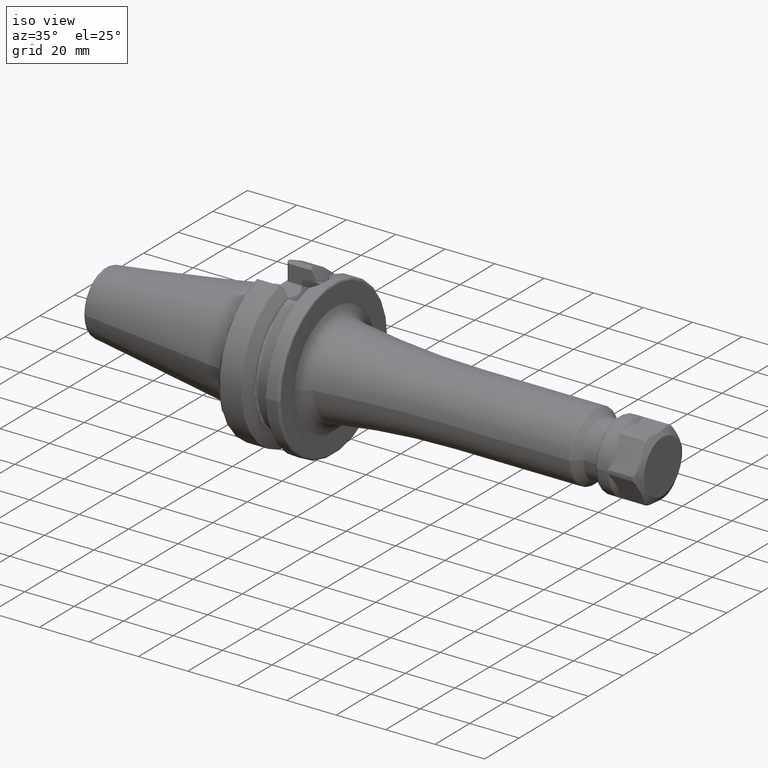
[diagram: clean part render]
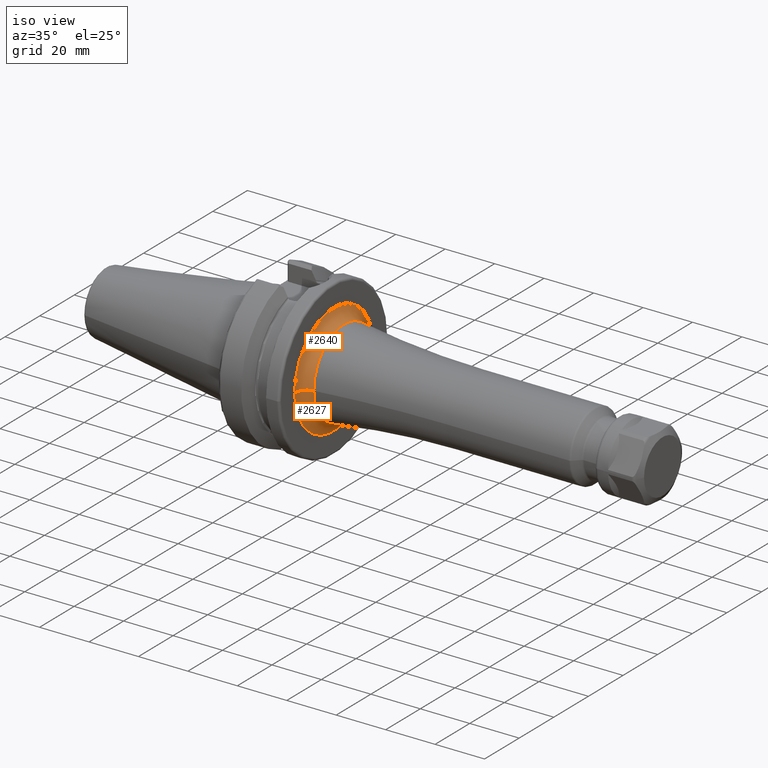
[diagram: same view with one multi-face feature highlighted, each face labeled with its STEP entity id]
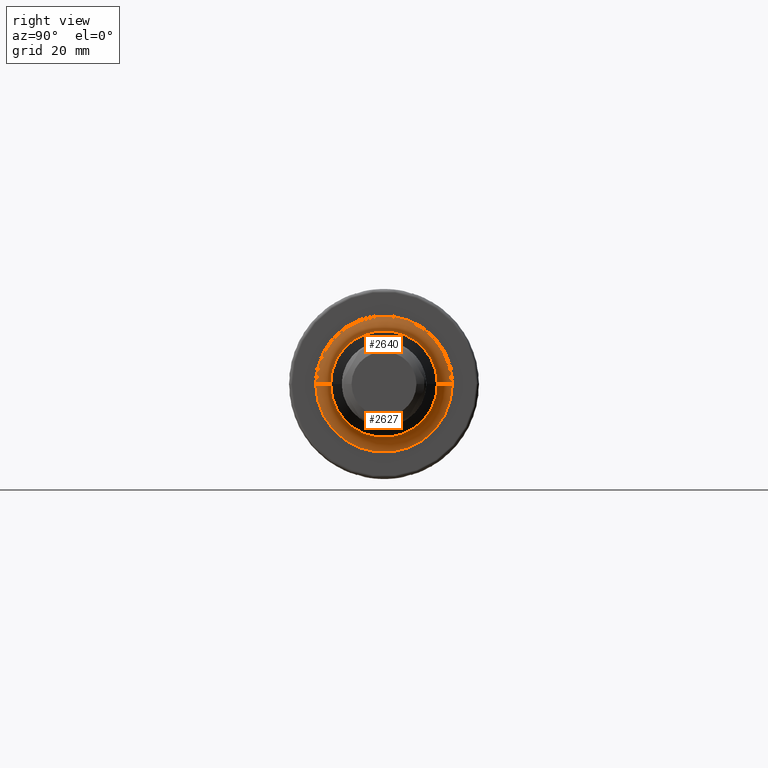
[diagram: same view with one multi-face feature highlighted, each face labeled with its STEP entity id]
A machine part, iso view. The highlighted faces form ONE feature: a constant-radius fillet chain: 2 tangent blend faces with common blend radius 5 mm. The faces share edges in the B-rep.
A second angle (right view) of the same feature is appended — it is thin or edge-on in the first view.
Their STEP definitions:
[1] entity #2640 (Torus):
#841=CARTESIAN_POINT('',(2.7E1,0.E0,0.E0));
#842=DIRECTION('',(1.E0,0.E0,0.E0));
#843=DIRECTION('',(0.E0,1.E0,0.E0));
#844=AXIS2_PLACEMENT_3D('',#841,#842,#843);
#846=CARTESIAN_POINT('',(3.2E1,-2.264241622603E1,1.492556078730E-12));
#847=DIRECTION('',(0.E0,-6.591775736364E-14,-1.E0));
#848=DIRECTION('',(-1.E0,2.913225216616E-14,0.E0));
#849=AXIS2_PLACEMENT_3D('',#846,#847,#848);
#851=CARTESIAN_POINT('',(3.2E1,2.264241622603E1,-1.505434665816E-12));
#852=DIRECTION('',(0.E0,6.648674666376E-14,1.E0));
#853=DIRECTION('',(-1.E0,-2.771116669464E-14,0.E0));
#854=AXIS2_PLACEMENT_3D('',#851,#852,#853);
#856=CARTESIAN_POINT('',(3.127536231884E1,0.E0,0.E0));
#857=DIRECTION('',(1.E0,0.E0,0.E0));
#858=DIRECTION('',(0.E0,1.E0,0.E0));
#859=AXIS2_PLACEMENT_3D('',#856,#857,#858);
#1505=CARTESIAN_POINT('',(2.7E1,-2.264241622603E1,-1.560102413960E-14));
#1506=CARTESIAN_POINT('',(2.7E1,2.264241622603E1,1.282812788399E-14));
#1507=VERTEX_POINT('',#1505);
#1508=VERTEX_POINT('',#1506);
#1509=CARTESIAN_POINT('',(3.127536231884E1,-1.769520486699E1,0.E0));
#1510=CARTESIAN_POINT('',(3.127536231884E1,1.769520486699E1,0.E0));
#1511=VERTEX_POINT('',#1509);
#1512=VERTEX_POINT('',#1510);
#2628=CARTESIAN_POINT('',(3.2E1,0.E0,0.E0));
#2629=DIRECTION('',(1.E0,0.E0,0.E0));
#2630=DIRECTION('',(0.E0,9.999480735601E-1,-1.019069102336E-2));
#2631=AXIS2_PLACEMENT_3D('',#2628,#2629,#2630);
#2632=TOROIDAL_SURFACE('',#2631,2.264241622603E1,5.E0);
#2633=ORIENTED_EDGE('',*,*,#2608,.F.);
#2634=ORIENTED_EDGE('',*,*,#2623,.T.);
#2636=ORIENTED_EDGE('',*,*,#2635,.T.);
#2637=ORIENTED_EDGE('',*,*,#2619,.F.);
#2638=EDGE_LOOP('',(#2633,#2634,#2636,#2637));
#2639=FACE_OUTER_BOUND('',#2638,.F.);
#2640=ADVANCED_FACE('',(#2639),#2632,.F.);
#845=CIRCLE('',#844,2.264241622603E1);
#850=CIRCLE('',#849,5.E0);
#855=CIRCLE('',#854,5.E0);
#860=CIRCLE('',#859,1.769520486699E1);
#2608=EDGE_CURVE('',#1508,#1507,#845,.T.);
#2619=EDGE_CURVE('',#1507,#1511,#850,.T.);
#2623=EDGE_CURVE('',#1508,#1512,#855,.T.);
#2635=EDGE_CURVE('',#1512,#1511,#860,.T.);
[2] entity #2627 (Torus):
#836=CARTESIAN_POINT('',(2.7E1,0.E0,0.E0));
#837=DIRECTION('',(1.E0,0.E0,0.E0));
#838=DIRECTION('',(0.E0,-1.E0,0.E0));
#839=AXIS2_PLACEMENT_3D('',#836,#837,#838);
#846=CARTESIAN_POINT('',(3.2E1,-2.264241622603E1,1.492556078730E-12));
#847=DIRECTION('',(0.E0,-6.591775736364E-14,-1.E0));
#848=DIRECTION('',(-1.E0,2.913225216616E-14,0.E0));
#849=AXIS2_PLACEMENT_3D('',#846,#847,#848);
#851=CARTESIAN_POINT('',(3.2E1,2.264241622603E1,-1.505434665816E-12));
#852=DIRECTION('',(0.E0,6.648674666376E-14,1.E0));
#853=DIRECTION('',(-1.E0,-2.771116669464E-14,0.E0));
#854=AXIS2_PLACEMENT_3D('',#851,#852,#853);
#861=CARTESIAN_POINT('',(3.127536231884E1,0.E0,0.E0));
#862=DIRECTION('',(1.E0,0.E0,0.E0));
#863=DIRECTION('',(0.E0,-1.E0,0.E0));
#864=AXIS2_PLACEMENT_3D('',#861,#862,#863);
#1505=CARTESIAN_POINT('',(2.7E1,-2.264241622603E1,-1.560102413960E-14));
#1506=CARTESIAN_POINT('',(2.7E1,2.264241622603E1,1.282812788399E-14));
#1507=VERTEX_POINT('',#1505);
#1508=VERTEX_POINT('',#1506);
#1509=CARTESIAN_POINT('',(3.127536231884E1,-1.769520486699E1,0.E0));
#1510=CARTESIAN_POINT('',(3.127536231884E1,1.769520486699E1,0.E0));
#1511=VERTEX_POINT('',#1509);
#1512=VERTEX_POINT('',#1510);
#2613=CARTESIAN_POINT('',(3.2E1,0.E0,0.E0));
#2614=DIRECTION('',(1.E0,0.E0,0.E0));
#2615=DIRECTION('',(0.E0,-9.999480735601E-1,1.019069102336E-2));
#2616=AXIS2_PLACEMENT_3D('',#2613,#2614,#2615);
#2617=TOROIDAL_SURFACE('',#2616,2.264241622603E1,5.E0);
#2618=ORIENTED_EDGE('',*,*,#2606,.F.);
#2620=ORIENTED_EDGE('',*,*,#2619,.T.);
#2622=ORIENTED_EDGE('',*,*,#2621,.T.);
#2624=ORIENTED_EDGE('',*,*,#2623,.F.);
#2625=EDGE_LOOP('',(#2618,#2620,#2622,#2624));
#2626=FACE_OUTER_BOUND('',#2625,.F.);
#2627=ADVANCED_FACE('',(#2626),#2617,.F.);
#840=CIRCLE('',#839,2.264241622603E1);
#850=CIRCLE('',#849,5.E0);
#855=CIRCLE('',#854,5.E0);
#865=CIRCLE('',#864,1.769520486699E1);
#2606=EDGE_CURVE('',#1507,#1508,#840,.T.);
#2619=EDGE_CURVE('',#1507,#1511,#850,.T.);
#2621=EDGE_CURVE('',#1511,#1512,#865,.T.);
#2623=EDGE_CURVE('',#1508,#1512,#855,.T.);